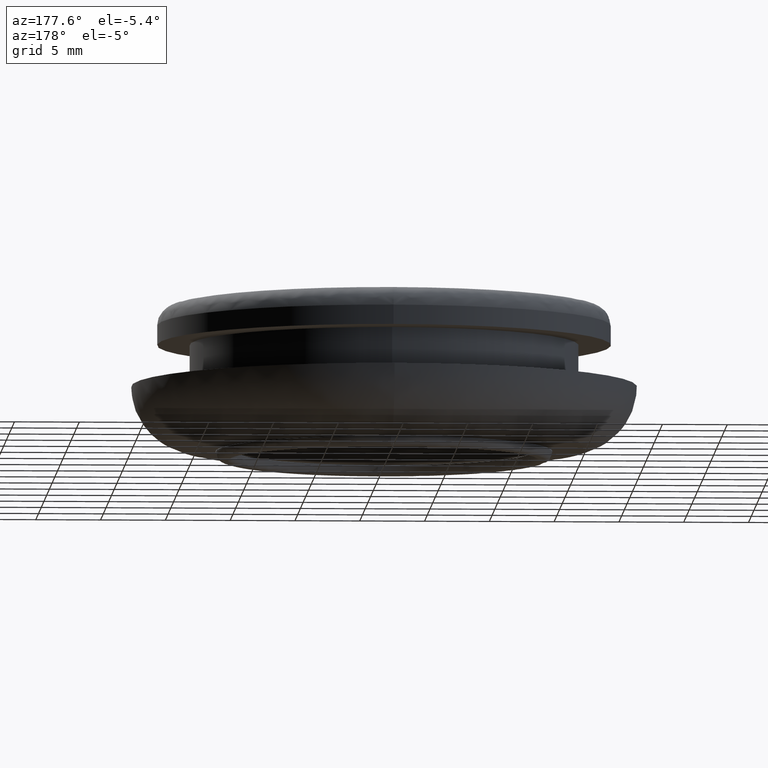
[diagram: clean part render]
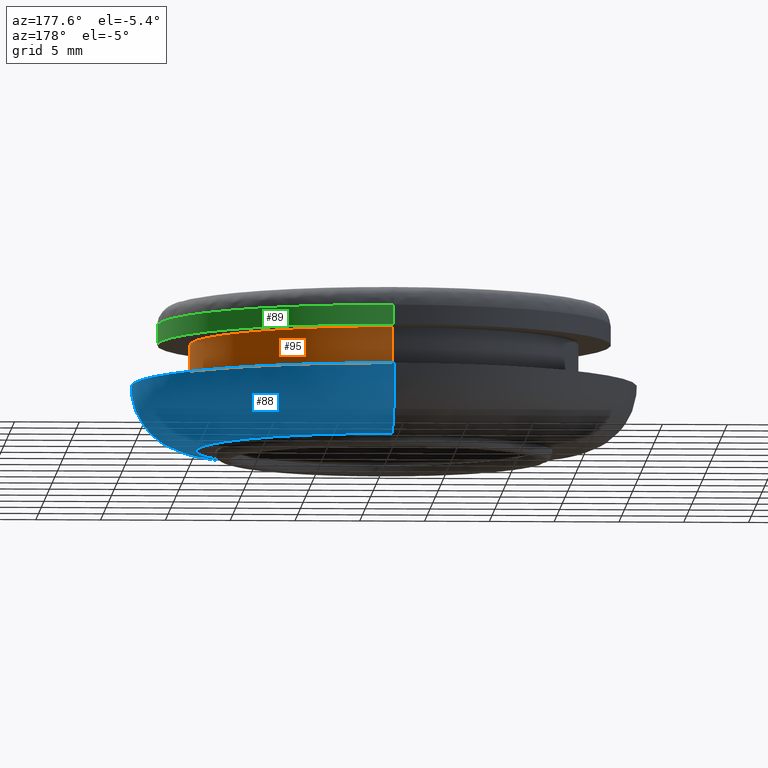
[diagram: same view with three faces highlighted in distinct colors, each labeled with its STEP entity id]
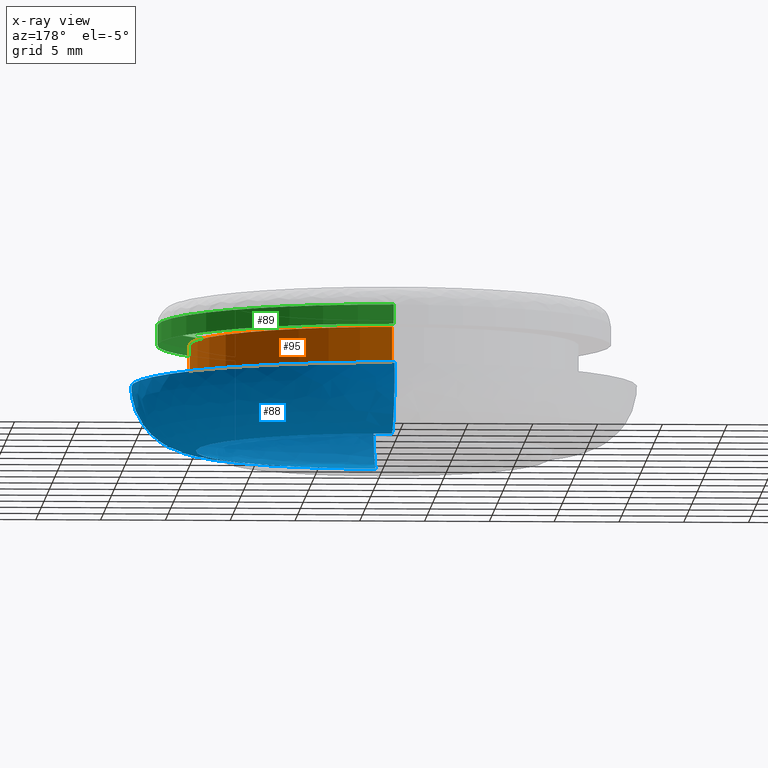
[diagram: x-ray of the same camera — body ghosted, the three highlighted faces saturated]
A machine part, auxiliary view with three faces highlighted in distinct colors.
The next image is the same camera in x-ray (body ghosted, the three faces saturated) — at least one of them is partly hidden behind the body in this view.
Their STEP definitions:

[orange] entity #95 — the highlighted cylindrical surface (partial cylindrical patch) has radius 15 mm, axis along (0, 0, -1).
#95=ADVANCED_FACE('',(#302),#301,.T.);
#301=CYLINDRICAL_SURFACE('',#554,1.50000000000E+001);
#302=FACE_OUTER_BOUND('',#555,.T.);
#551=CARTESIAN_POINT('',(0.00000000000E+000,4.59999990463E+000,0.00000000000E+000));
#552=DIRECTION('',(-0.00000000000E+000,1.00000000000E+000,-0.00000000000E+000));
#553=DIRECTION('',(0.00000000000E+000,0.00000000000E+000,1.00000000000E+000));
#554=AXIS2_PLACEMENT_3D('',#551,#552,#553);
#555=EDGE_LOOP('',(#637,#638,#639,#640));
#637=ORIENTED_EDGE('',*,*,#659,.T.);
#638=ORIENTED_EDGE('',*,*,#685,.F.);
#639=ORIENTED_EDGE('',*,*,#655,.F.);
#640=ORIENTED_EDGE('',*,*,#686,.T.);
#655=EDGE_CURVE('',#757,#758,#759,.T.);
#659=EDGE_CURVE('',#785,#786,#787,.T.);
#685=EDGE_CURVE('',#758,#786,#953,.T.);
#686=EDGE_CURVE('',#757,#785,#959,.T.);
#757=VERTEX_POINT('',#1017);
#758=VERTEX_POINT('',#1018);
#759=CIRCLE('',#1022,1.50000000000E+001);
#785=VERTEX_POINT('',#1037);
#786=VERTEX_POINT('',#1038);
#787=CIRCLE('',#1042,1.50000000000E+001);
#953=(BOUNDED_CURVE() B_SPLINE_CURVE(1,(#1141,#1142),.UNSPECIFIED.,.F.,.F.) B_SPLINE_CURVE_WITH_KNOTS((2,2),(8.33333233997E-002,9.16666663280E-001),.UNSPECIFIED.) CURVE() GEOMETRIC_REPRESENTATION_ITEM() RATIONAL_B_SPLINE_CURVE((1.00000000000E+000,1.00000000000E+000)) REPRESENTATION_ITEM('') );
#959=(BOUNDED_CURVE() B_SPLINE_CURVE(1,(#1143,#1144),.UNSPECIFIED.,.F.,.F.) B_SPLINE_CURVE_WITH_KNOTS((2,2),(8.33333333333E-002,9.16666666667E-001),.UNSPECIFIED.) CURVE() GEOMETRIC_REPRESENTATION_ITEM() RATIONAL_B_SPLINE_CURVE((7.50000000000E-001,7.50000000000E-001)) REPRESENTATION_ITEM('') );
#1017=CARTESIAN_POINT('',(0.00000000000E+000,3.00000000000E+000,-1.50000000000E+001));
#1018=CARTESIAN_POINT('',(1.18423789293E-015,3.00000000000E+000,1.50000000000E+001));
#1019=CARTESIAN_POINT('',(0.00000000000E+000,3.00000000000E+000,0.00000000000E+000));
#1020=DIRECTION('',(0.00000000000E+000,-1.00000000000E+000,-0.00000000000E+000));
#1021=DIRECTION('',(-1.22460635382E-016,0.00000000000E+000,-1.00000000000E+000));
#1022=AXIS2_PLACEMENT_3D('',#1019,#1020,#1021);
#1037=CARTESIAN_POINT('',(1.18423789293E-015,6.20000000000E+000,-1.50000000000E+001));
#1038=CARTESIAN_POINT('',(1.83690953073E-015,6.20000000000E+000,1.50000000000E+001));
#1039=CARTESIAN_POINT('',(0.00000000000E+000,6.20000000000E+000,0.00000000000E+000));
#1040=DIRECTION('',(0.00000000000E+000,-1.00000000000E+000,0.00000000000E+000));
#1041=DIRECTION('',(-0.00000000000E+000,-0.00000000000E+000,1.00000000000E+000));
#1042=AXIS2_PLACEMENT_3D('',#1039,#1040,#1041);
#1141=CARTESIAN_POINT('',(0.00000000000E+000,2.99999996185E+000,1.50000000000E+001));
#1142=CARTESIAN_POINT('',(0.00000000000E+000,6.19999998699E+000,1.50000000000E+001));
#1143=CARTESIAN_POINT('',(-5.92118946467E-016,3.00000000000E+000,-1.50000000000E+001));
#1144=CARTESIAN_POINT('',(-5.92118946467E-016,6.20000000000E+000,-1.50000000000E+001));

[blue] entity #88 — the highlighted face is a freeform B-spline surface patch.
#88=ADVANCED_FACE('',(#232),#231,.T.);
#231=( BOUNDED_SURFACE() B_SPLINE_SURFACE( 2,2,((#453,#454,#455,#456,#457),(#458,#459,#460,#461,#462),(#463,#464,#465,#466,#467),(#468,#469,#470,#471,#472),(#473,#474,#475,#476,#477)), .UNSPECIFIED.,.F.,.F.,.F.) B_SPLINE_SURFACE_WITH_KNOTS((3,2,3),(3,2,3),(0.00000000000E+000,5.00000000000E-001,1.00000000000E+000),(0.00000000000E+000,5.00000000000E-001,1.00000000000E+000), .UNSPECIFIED. ) GEOMETRIC_REPRESENTATION_ITEM() RATIONAL_B_SPLINE_SURFACE(((1.00000000000E+000,7.07106781187E-001,1.00000000000E+000,7.07106781187E-001,1.00000000000E+000),(7.07106781187E-001,5.00000000000E-001,7.07106781187E-001,5.00000000000E-001,7.07106781187E-001),(1.00000000000E+000,7.07106781187E-001,1.00000000000E+000,7.07106781187E-001,1.00000000000E+000),(7.07106781187E-001,5.00000000000E-001,7.07106781187E-001,5.00000000000E-001,7.07106781187E-001),(1.00000000000E+000,7.07106781187E-001,1.00000000000E+000,7.07106781187E-001,1.00000000000E+000))) REPRESENTATION_ITEM('') SURFACE() );
#232=FACE_OUTER_BOUND('',#478,.T.);
#453=CARTESIAN_POINT('',(-3.84230587272E-020,6.20000000000E+000,-9.50000000000E+000));
#454=CARTESIAN_POINT('',(-3.84230587272E-020,1.12000000000E+001,-9.50000000000E+000));
#455=CARTESIAN_POINT('',(-5.86457212151E-020,1.12000000000E+001,-1.45000000000E+001));
#456=CARTESIAN_POINT('',(-7.88683837031E-020,1.12000000000E+001,-1.95000000000E+001));
#457=CARTESIAN_POINT('',(-7.88683837031E-020,6.20000000000E+000,-1.95000000000E+001));
#458=CARTESIAN_POINT('',(9.50000000000E+000,6.20000000000E+000,-9.50000000000E+000));
#459=CARTESIAN_POINT('',(9.50000000000E+000,1.12000000000E+001,-9.50000000000E+000));
#460=CARTESIAN_POINT('',(1.45000000000E+001,1.12000000000E+001,-1.45000000000E+001));
#461=CARTESIAN_POINT('',(1.95000000000E+001,1.12000000000E+001,-1.95000000000E+001));
#462=CARTESIAN_POINT('',(1.95000000000E+001,6.20000000000E+000,-1.95000000000E+001));
#463=CARTESIAN_POINT('',(9.50000000000E+000,6.20000000000E+000,-5.81745652654E-016));
#464=CARTESIAN_POINT('',(9.50000000000E+000,1.12000000000E+001,-5.81745652654E-016));
#465=CARTESIAN_POINT('',(1.45000000000E+001,1.12000000000E+001,-8.87927575103E-016));
#466=CARTESIAN_POINT('',(1.95000000000E+001,1.12000000000E+001,-1.19410949755E-015));
#467=CARTESIAN_POINT('',(1.95000000000E+001,6.20000000000E+000,-1.19410949755E-015));
#468=CARTESIAN_POINT('',(9.50000000000E+000,6.20000000000E+000,9.50000000000E+000));
#469=CARTESIAN_POINT('',(9.50000000000E+000,1.12000000000E+001,9.50000000000E+000));
#470=CARTESIAN_POINT('',(1.45000000000E+001,1.12000000000E+001,1.45000000000E+001));
#471=CARTESIAN_POINT('',(1.95000000000E+001,1.12000000000E+001,1.95000000000E+001));
#472=CARTESIAN_POINT('',(1.95000000000E+001,6.20000000000E+000,1.95000000000E+001));
#473=CARTESIAN_POINT('',(1.16345288225E-015,6.20000000000E+000,9.50000000000E+000));
#474=CARTESIAN_POINT('',(1.16345288225E-015,1.12000000000E+001,9.50000000000E+000));
#475=CARTESIAN_POINT('',(1.77579650448E-015,1.12000000000E+001,1.45000000000E+001));
#476=CARTESIAN_POINT('',(2.38814012672E-015,1.12000000000E+001,1.95000000000E+001));
#477=CARTESIAN_POINT('',(2.38814012672E-015,6.20000000000E+000,1.95000000000E+001));
#478=EDGE_LOOP('',(#609,#610,#611,#612));
#609=ORIENTED_EDGE('',*,*,#661,.T.);
#610=ORIENTED_EDGE('',*,*,#675,.T.);
#611=ORIENTED_EDGE('',*,*,#657,.F.);
#612=ORIENTED_EDGE('',*,*,#676,.F.);
#657=EDGE_CURVE('',#771,#772,#773,.T.);
#661=EDGE_CURVE('',#799,#800,#801,.T.);
#675=EDGE_CURVE('',#800,#772,#891,.T.);
#676=EDGE_CURVE('',#799,#771,#897,.T.);
#771=VERTEX_POINT('',#1027);
#772=VERTEX_POINT('',#1028);
#773=CIRCLE('',#1032,1.95000000000E+001);
#799=VERTEX_POINT('',#1047);
#800=VERTEX_POINT('',#1048);
#801=CIRCLE('',#1052,1.45000000000E+001);
#891=(BOUNDED_CURVE() B_SPLINE_CURVE(2,(#1107,#1108,#1109),.UNSPECIFIED.,.F.,.F.) B_SPLINE_CURVE_WITH_KNOTS((3,3),(5.00000000000E-001,1.00000000000E+000),.UNSPECIFIED.) CURVE() GEOMETRIC_REPRESENTATION_ITEM() RATIONAL_B_SPLINE_CURVE((1.00000000000E+000,7.07106781187E-001,1.00000000000E+000)) REPRESENTATION_ITEM('') );
#897=(BOUNDED_CURVE() B_SPLINE_CURVE(3,(#1110,#1111,#1112,#1113,#1114),.UNSPECIFIED.,.F.,.F.) B_SPLINE_CURVE_WITH_KNOTS((4,1,4),(4.99999914708E-001,7.49999950918E-001,1.00000000000E+000),.UNSPECIFIED.) CURVE() GEOMETRIC_REPRESENTATION_ITEM() RATIONAL_B_SPLINE_CURVE((1.00000000000E+000,1.00000000000E+000,1.00000000000E+000,1.00000000000E+000,1.00000000000E+000)) REPRESENTATION_ITEM('') );
#1027=CARTESIAN_POINT('',(0.00000000000E+000,6.20000000000E+000,-1.95000000000E+001));
#1028=CARTESIAN_POINT('',(1.18423789293E-015,6.20000000000E+000,1.95000000000E+001));
#1029=CARTESIAN_POINT('',(0.00000000000E+000,6.20000000000E+000,0.00000000000E+000));
#1030=DIRECTION('',(0.00000000000E+000,-1.00000000000E+000,-0.00000000000E+000));
#1031=DIRECTION('',(-1.22460635382E-016,0.00000000000E+000,-1.00000000000E+000));
#1032=AXIS2_PLACEMENT_3D('',#1029,#1030,#1031);
#1047=CARTESIAN_POINT('',(5.92118946467E-016,1.12000000000E+001,-1.45000000000E+001));
#1048=CARTESIAN_POINT('',(1.77567921304E-015,1.12000000000E+001,1.45000000000E+001));
#1049=CARTESIAN_POINT('',(0.00000000000E+000,1.12000000000E+001,0.00000000000E+000));
#1050=DIRECTION('',(0.00000000000E+000,-1.00000000000E+000,0.00000000000E+000));
#1051=DIRECTION('',(-0.00000000000E+000,-0.00000000000E+000,1.00000000000E+000));
#1052=AXIS2_PLACEMENT_3D('',#1049,#1050,#1051);
#1107=CARTESIAN_POINT('',(-1.77567921304E-015,1.12000000000E+001,1.45000000000E+001));
#1108=CARTESIAN_POINT('',(-2.38798238995E-015,1.12000000000E+001,1.95000000000E+001));
#1109=CARTESIAN_POINT('',(-2.38798238995E-015,6.20000000000E+000,1.95000000000E+001));
#1110=CARTESIAN_POINT('',(1.18423780926E-015,1.12000000000E+001,-1.44999987938E+001));
#1111=CARTESIAN_POINT('',(1.30956955420E-015,1.12092214040E+001,-1.57905608431E+001));
#1112=CARTESIAN_POINT('',(1.71860492898E-015,1.01211769545E+001,-1.84211759390E+001));
#1113=CARTESIAN_POINT('',(2.19032512589E-015,7.49056211768E+000,-1.95092210956E+001));
#1114=CARTESIAN_POINT('',(2.36847578587E-015,6.20000000000E+000,-1.95000000000E+001));

[green] entity #89 — the highlighted cylindrical surface (partial cylindrical patch) has radius 17.5 mm, axis along (0, 0, -1).
#89=ADVANCED_FACE('',(#242),#241,.T.);
#241=CYLINDRICAL_SURFACE('',#482,1.75000000000E+001);
#242=FACE_OUTER_BOUND('',#483,.T.);
#479=CARTESIAN_POINT('',(0.00000000000E+000,2.25000000000E+000,0.00000000000E+000));
#480=DIRECTION('',(-0.00000000000E+000,1.00000000000E+000,-0.00000000000E+000));
#481=DIRECTION('',(0.00000000000E+000,0.00000000000E+000,1.00000000000E+000));
#482=AXIS2_PLACEMENT_3D('',#479,#480,#481);
#483=EDGE_LOOP('',(#613,#614,#615,#616));
#613=ORIENTED_EDGE('',*,*,#653,.T.);
#614=ORIENTED_EDGE('',*,*,#677,.F.);
#615=ORIENTED_EDGE('',*,*,#678,.F.);
#616=ORIENTED_EDGE('',*,*,#679,.T.);
#653=EDGE_CURVE('',#743,#744,#745,.T.);
#677=EDGE_CURVE('',#903,#744,#904,.T.);
#678=EDGE_CURVE('',#910,#903,#911,.T.);
#679=EDGE_CURVE('',#910,#743,#917,.T.);
#743=VERTEX_POINT('',#1007);
#744=VERTEX_POINT('',#1008);
#745=CIRCLE('',#1012,1.75000000000E+001);
#903=VERTEX_POINT('',#1115);
#904=(BOUNDED_CURVE() B_SPLINE_CURVE(1,(#1116,#1117),.UNSPECIFIED.,.F.,.F.) B_SPLINE_CURVE_WITH_KNOTS((2,2),(8.33333134656E-002,9.16666653270E-001),.UNSPECIFIED.) CURVE() GEOMETRIC_REPRESENTATION_ITEM() RATIONAL_B_SPLINE_CURVE((1.00000000000E+000,1.00000000000E+000)) REPRESENTATION_ITEM('') );
#910=VERTEX_POINT('',#1118);
#911=CIRCLE('',#1122,1.75000000000E+001);
#917=(BOUNDED_CURVE() B_SPLINE_CURVE(1,(#1123,#1124),.UNSPECIFIED.,.F.,.F.) B_SPLINE_CURVE_WITH_KNOTS((2,2),(8.33333333333E-002,9.16666666667E-001),.UNSPECIFIED.) CURVE() GEOMETRIC_REPRESENTATION_ITEM() RATIONAL_B_SPLINE_CURVE((7.50000000000E-001,7.50000000000E-001)) REPRESENTATION_ITEM('') );
#1007=CARTESIAN_POINT('',(1.77635683940E-015,3.00000000000E+000,-1.75000000000E+001));
#1008=CARTESIAN_POINT('',(2.14306111919E-015,3.00000000000E+000,1.75000000000E+001));
#1009=CARTESIAN_POINT('',(0.00000000000E+000,3.00000000000E+000,0.00000000000E+000));
#1010=DIRECTION('',(0.00000000000E+000,-1.00000000000E+000,0.00000000000E+000));
#1011=DIRECTION('',(-0.00000000000E+000,-0.00000000000E+000,1.00000000000E+000));
#1012=AXIS2_PLACEMENT_3D('',#1009,#1010,#1011);
#1115=CARTESIAN_POINT('',(1.18423789293E-015,1.50000000000E+000,1.75000000000E+001));
#1116=CARTESIAN_POINT('',(0.00000000000E+000,1.49999996424E+000,1.75000000000E+001));
#1117=CARTESIAN_POINT('',(0.00000000000E+000,2.99999997589E+000,1.75000000000E+001));
#1118=CARTESIAN_POINT('',(0.00000000000E+000,1.50000000000E+000,-1.75000000000E+001));
#1119=CARTESIAN_POINT('',(0.00000000000E+000,1.50000000000E+000,0.00000000000E+000));
#1120=DIRECTION('',(0.00000000000E+000,-1.00000000000E+000,-0.00000000000E+000));
#1121=DIRECTION('',(-1.22460635382E-016,0.00000000000E+000,-1.00000000000E+000));
#1122=AXIS2_PLACEMENT_3D('',#1119,#1120,#1121);
#1123=CARTESIAN_POINT('',(-1.18423789293E-015,1.50000000000E+000,-1.75000000000E+001));
#1124=CARTESIAN_POINT('',(-1.18423789293E-015,3.00000000000E+000,-1.75000000000E+001));